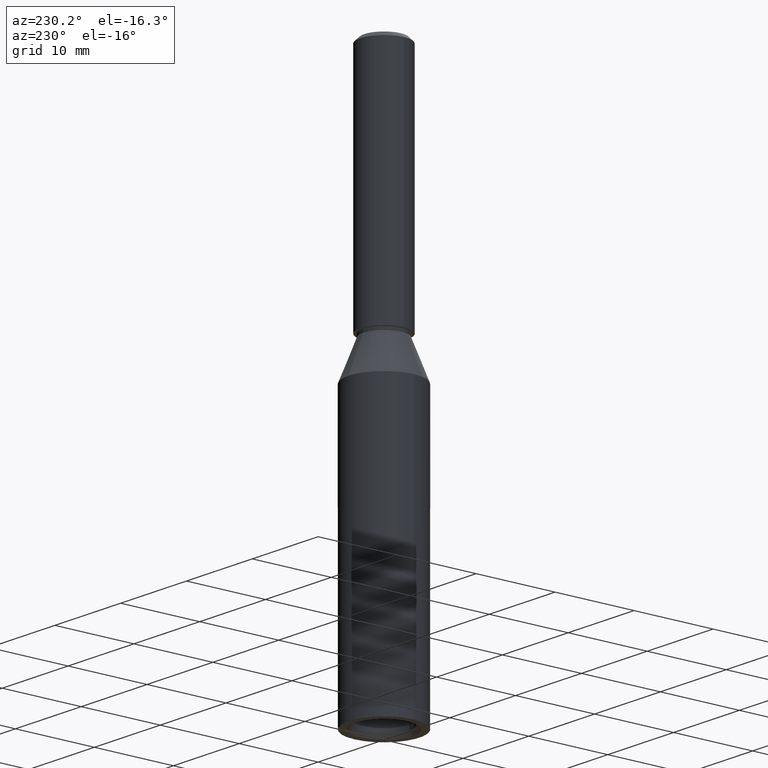
[diagram: clean part render]
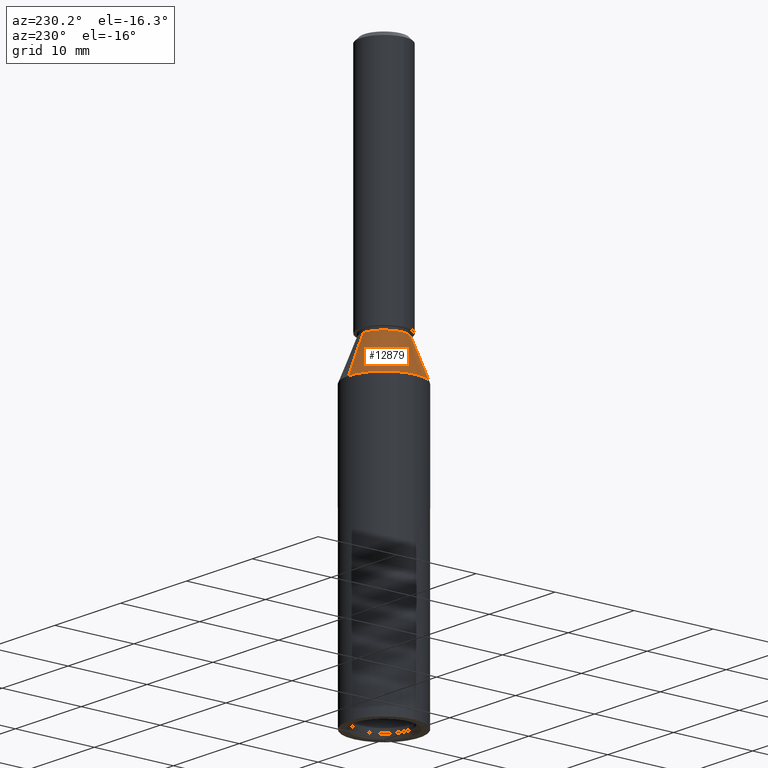
[diagram: same view with one face highlighted and labeled with its STEP entity id]
A machine part, auxiliary view. The second image highlights one B-rep face of the part: STEP entity #12879.
In plain terms, the highlighted conical surface has half-angle 21.485 deg.
Its self-contained STEP definition (entity closure, byte-faithful):
#32 = CARTESIAN_POINT ( 'NONE',  ( 0.0000000000000000000, -6.887097141624716800E-017, 35.00000000000000000 ) ) ;
#508 = FACE_OUTER_BOUND ( 'NONE', #2931, .T. ) ;
#736 = DIRECTION ( 'NONE',  ( -0.0000000000000000000, 1.967742040464204400E-018, -1.000000000000000000 ) ) ;
#748 = EDGE_CURVE ( 'NONE', #820, #13061, #9024, .T. ) ;
#820 = VERTEX_POINT ( 'NONE', #7149 ) ;
#1174 = CARTESIAN_POINT ( 'NONE',  ( 5.510910596163094500E-016, -4.500000000000003600, 35.00000000000000000 ) ) ;
#2002 = DIRECTION ( 'NONE',  ( 0.0000000000000000000, 1.000000000000000000, 0.0000000000000000000 ) ) ;
#2726 = VECTOR ( 'NONE', #8377, 1000.000000000000000 ) ;
#2737 = EDGE_CURVE ( 'NONE', #3906, #7243, #10111, .T. ) ;
#2931 = EDGE_LOOP ( 'NONE', ( #3544, #6080, #7585, #6174, #12454 ) ) ;
#3223 = CARTESIAN_POINT ( 'NONE',  ( 0.0000000000000000000, 4.500000000000003600, 35.00000000000000000 ) ) ;
#3544 = ORIENTED_EDGE ( 'NONE', *, *, #5673, .F. ) ;
#3830 = DIRECTION ( 'NONE',  ( -0.0000000000000000000, 1.967742040464204400E-018, -1.000000000000000000 ) ) ;
#3906 = VERTEX_POINT ( 'NONE', #4678 ) ;
#4678 = CARTESIAN_POINT ( 'NONE',  ( 3.245314017740492400E-016, -2.650000000000005200, 39.70000000000000300 ) ) ;
#5427 = VERTEX_POINT ( 'NONE', #12892 ) ;
#5464 = AXIS2_PLACEMENT_3D ( 'NONE', #5780, #736, #7904 ) ;
#5577 = CONICAL_SURFACE ( 'NONE', #7104, 4.500000000000003600, 0.3749917271333682000 ) ;
#5673 = EDGE_CURVE ( 'NONE', #3906, #820, #11993, .T. ) ;
#5780 = CARTESIAN_POINT ( 'NONE',  ( 0.0000000000000000000, -6.887097141624716800E-017, 35.00000000000000000 ) ) ;
#6016 = CARTESIAN_POINT ( 'NONE',  ( 0.0000000000000000000, 2.650000000000005200, 39.70000000000000300 ) ) ;
#6080 = ORIENTED_EDGE ( 'NONE', *, *, #2737, .T. ) ;
#6174 = ORIENTED_EDGE ( 'NONE', *, *, #11753, .F. ) ;
#6388 = DIRECTION ( 'NONE',  ( 4.485450530567289000E-017, -0.3662648311080578000, -0.9305106520042560900 ) ) ;
#6865 = DIRECTION ( 'NONE',  ( -0.0000000000000000000, 1.967742040464204400E-018, -1.000000000000000000 ) ) ;
#7104 = AXIS2_PLACEMENT_3D ( 'NONE', #12832, #3830, #2002 ) ;
#7149 = CARTESIAN_POINT ( 'NONE',  ( 5.510910596163094500E-016, -4.500000000000003600, 35.00000000000000000 ) ) ;
#7150 = LINE ( 'NONE', #3223, #2726 ) ;
#7243 = VERTEX_POINT ( 'NONE', #6016 ) ;
#7585 = ORIENTED_EDGE ( 'NONE', *, *, #8429, .T. ) ;
#7872 = DIRECTION ( 'NONE',  ( 0.0000000000000000000, 1.000000000000000000, 0.0000000000000000000 ) ) ;
#7890 = AXIS2_PLACEMENT_3D ( 'NONE', #11896, #6865, #7872 ) ;
#7904 = DIRECTION ( 'NONE',  ( 0.0000000000000000000, 1.000000000000000000, 0.0000000000000000000 ) ) ;
#8108 = DIRECTION ( 'NONE',  ( 0.0000000000000000000, 1.000000000000000000, 0.0000000000000000000 ) ) ;
#8377 = DIRECTION ( 'NONE',  ( 0.0000000000000000000, 0.3662648311080578000, -0.9305106520042560900 ) ) ;
#8429 = EDGE_CURVE ( 'NONE', #7243, #5427, #7150, .T. ) ;
#8603 = CIRCLE ( 'NONE', #5464, 4.500000000000003600 ) ;
#8884 = AXIS2_PLACEMENT_3D ( 'NONE', #32, #12224, #8108 ) ;
#9024 = CIRCLE ( 'NONE', #8884, 4.500000000000003600 ) ;
#9665 = CARTESIAN_POINT ( 'NONE',  ( -4.500000000000003600, 6.018531076210112000E-032, 35.00000000000000000 ) ) ;
#10111 = CIRCLE ( 'NONE', #7890, 2.650000000000005200 ) ;
#11021 = VECTOR ( 'NONE', #6388, 1000.000000000000000 ) ;
#11753 = EDGE_CURVE ( 'NONE', #13061, #5427, #8603, .T. ) ;
#11896 = CARTESIAN_POINT ( 'NONE',  ( 0.0000000000000000000, -7.811935900642893000E-017, 39.70000000000000300 ) ) ;
#11993 = LINE ( 'NONE', #1174, #11021 ) ;
#12224 = DIRECTION ( 'NONE',  ( -0.0000000000000000000, 1.967742040464204400E-018, -1.000000000000000000 ) ) ;
#12454 = ORIENTED_EDGE ( 'NONE', *, *, #748, .F. ) ;
#12832 = CARTESIAN_POINT ( 'NONE',  ( 0.0000000000000000000, -6.887097141624716800E-017, 35.00000000000000000 ) ) ;
#12879 = ADVANCED_FACE ( 'NONE', ( #508 ), #5577, .T. ) ;
#12892 = CARTESIAN_POINT ( 'NONE',  ( 0.0000000000000000000, 4.500000000000003600, 35.00000000000000000 ) ) ;
#13061 = VERTEX_POINT ( 'NONE', #9665 ) ;